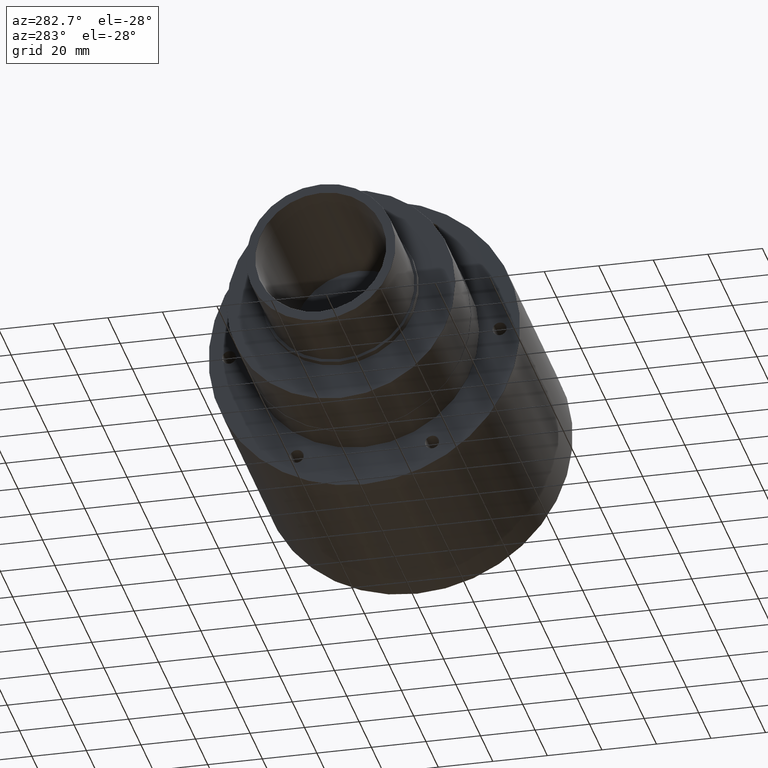
[diagram: clean part render]
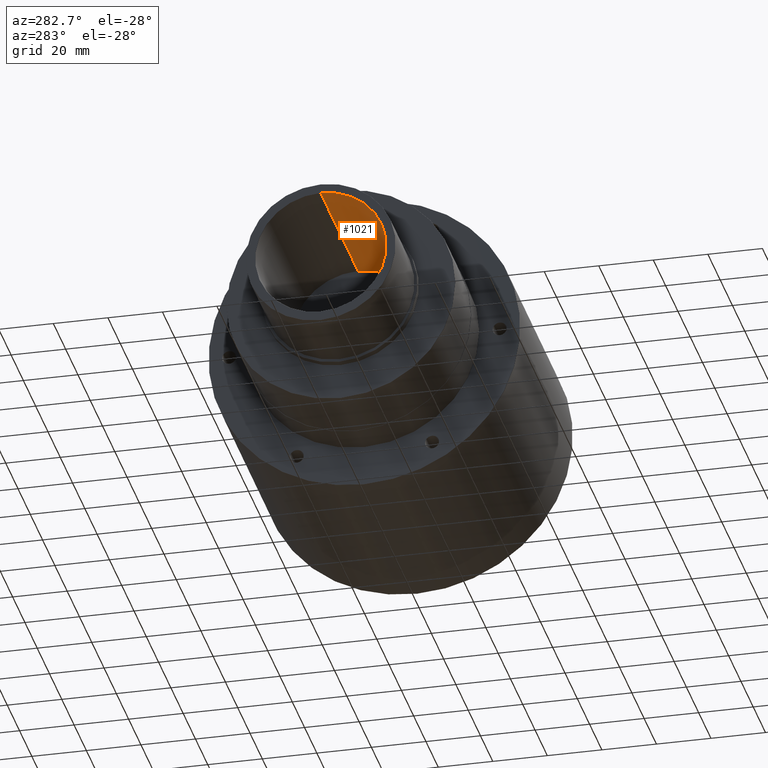
[diagram: same view with one face highlighted and labeled with its STEP entity id]
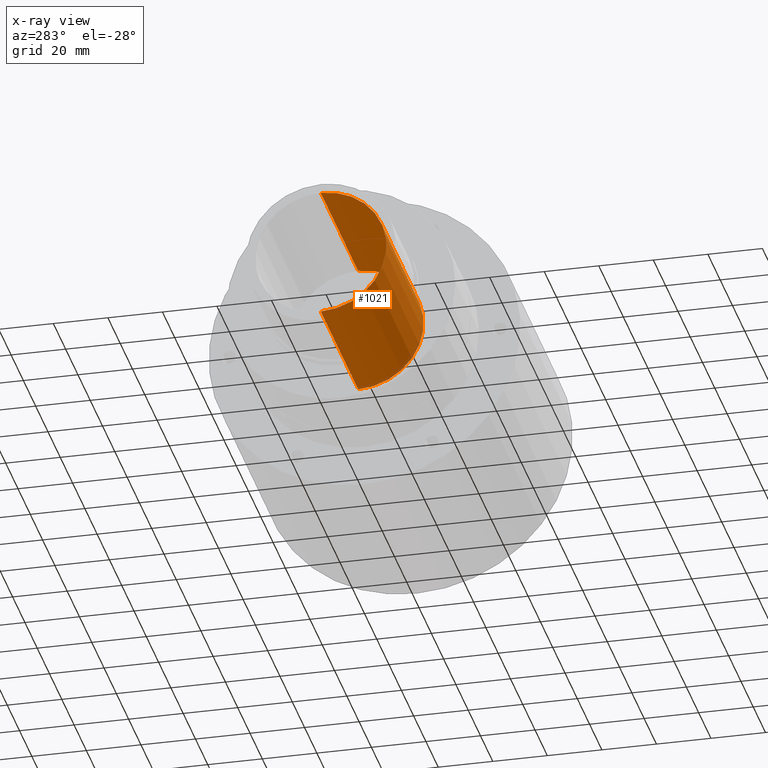
[diagram: x-ray of the same camera — body ghosted, the highlighted face saturated]
A machine part, auxiliary view. The second image highlights one B-rep face of the part: STEP entity #1021.
The next image is the same camera in x-ray: the body ghosted, the highlighted face saturated — about 2% of this face is hidden behind the body in this view.
In plain terms, the highlighted cylindrical surface (partial cylindrical patch) has radius 24.003 mm, axis along (-1, -0, -0).
Its self-contained STEP definition (entity closure, byte-faithful):
#53 = EDGE_CURVE ( 'NONE', #282, #281, #1270, .T. ) ;
#79 = DIRECTION ( 'NONE',  ( -1.000000000000000000, -0.0000000000000000000, -0.0000000000000000000 ) ) ;
#84 = DIRECTION ( 'NONE',  ( 0.0000000000000000000, 0.0000000000000000000, 1.000000000000000000 ) ) ;
#85 = DIRECTION ( 'NONE',  ( -1.000000000000000000, 0.0000000000000000000, 0.0000000000000000000 ) ) ;
#86 = DIRECTION ( 'NONE',  ( -1.000000000000000000, -0.0000000000000000000, -0.0000000000000000000 ) ) ;
#87 = CARTESIAN_POINT ( 'NONE',  ( 2.399999999999999900, 0.0000000000000000000, 0.0000000000000000000 ) ) ;
#101 = CARTESIAN_POINT ( 'NONE',  ( 2.399999999999999900, 0.0000000000000000000, 0.9450000000000000600 ) ) ;
#162 = CARTESIAN_POINT ( 'NONE',  ( 2.399999999999999900, 1.157291225194248600E-016, -0.9450000000000000600 ) ) ;
#169 = EDGE_CURVE ( 'NONE', #355, #281, #1281, .T. ) ;
#170 = EDGE_CURVE ( 'NONE', #354, #282, #1279, .T. ) ;
#171 = EDGE_CURVE ( 'NONE', #354, #355, #1287, .T. ) ;
#235 = CARTESIAN_POINT ( 'NONE',  ( 0.005000000000000083400, 1.157291225194248600E-016, -0.9450000000000000600 ) ) ;
#281 = VERTEX_POINT ( 'NONE', #2682 ) ;
#282 = VERTEX_POINT ( 'NONE', #235 ) ;
#354 = VERTEX_POINT ( 'NONE', #1659 ) ;
#355 = VERTEX_POINT ( 'NONE', #1660 ) ;
#499 = CARTESIAN_POINT ( 'NONE',  ( 0.005000000000000083400, 0.0000000000000000000, 0.0000000000000000000 ) ) ;
#502 = DIRECTION ( 'NONE',  ( -1.000000000000000000, -0.0000000000000000000, -0.0000000000000000000 ) ) ;
#503 = DIRECTION ( 'NONE',  ( 0.0000000000000000000, 0.0000000000000000000, -1.000000000000000000 ) ) ;
#707 = EDGE_LOOP ( 'NONE', ( #850, #851, #852, #853 ) ) ;
#850 = ORIENTED_EDGE ( 'NONE', *, *, #171, .F. ) ;
#851 = ORIENTED_EDGE ( 'NONE', *, *, #170, .T. ) ;
#852 = ORIENTED_EDGE ( 'NONE', *, *, #53, .T. ) ;
#853 = ORIENTED_EDGE ( 'NONE', *, *, #169, .F. ) ;
#1021 = ADVANCED_FACE ( 'NONE', ( #2376 ), #2385, .F. ) ;
#1270 = CIRCLE ( 'NONE', #1369, 0.9450000000000000600 ) ;
#1279 = LINE ( 'NONE', #162, #1283 ) ;
#1281 = LINE ( 'NONE', #101, #1282 ) ;
#1282 = VECTOR ( 'NONE', #79, 39.37007874015748100 ) ;
#1283 = VECTOR ( 'NONE', #86, 39.37007874015748100 ) ;
#1287 = CIRCLE ( 'NONE', #1374, 0.9450000000000000600 ) ;
#1369 = AXIS2_PLACEMENT_3D ( 'NONE', #499, #502, #503 ) ;
#1374 = AXIS2_PLACEMENT_3D ( 'NONE', #87, #85, #84 ) ;
#1507 = AXIS2_PLACEMENT_3D ( 'NONE', #2113, #2112, #2108 ) ;
#1659 = CARTESIAN_POINT ( 'NONE',  ( 2.399999999999999900, 1.157291225194248600E-016, -0.9450000000000000600 ) ) ;
#1660 = CARTESIAN_POINT ( 'NONE',  ( 2.399999999999999900, 0.0000000000000000000, 0.9450000000000000600 ) ) ;
#2108 = DIRECTION ( 'NONE',  ( 0.0000000000000000000, 0.0000000000000000000, 1.000000000000000000 ) ) ;
#2112 = DIRECTION ( 'NONE',  ( -1.000000000000000000, -0.0000000000000000000, -0.0000000000000000000 ) ) ;
#2113 = CARTESIAN_POINT ( 'NONE',  ( 2.399999999999999900, 0.0000000000000000000, 0.0000000000000000000 ) ) ;
#2376 = FACE_OUTER_BOUND ( 'NONE', #707, .T. ) ;
#2385 = CYLINDRICAL_SURFACE ( 'NONE', #1507, 0.9450000000000000600 ) ;
#2682 = CARTESIAN_POINT ( 'NONE',  ( 0.005000000000000083400, 0.0000000000000000000, 0.9450000000000000600 ) ) ;